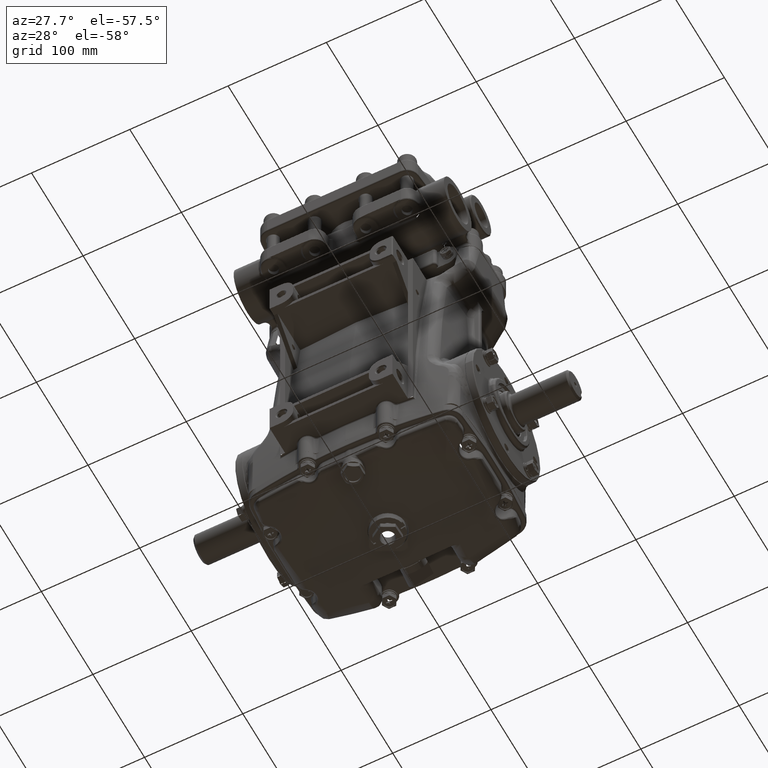
[diagram: clean part render]
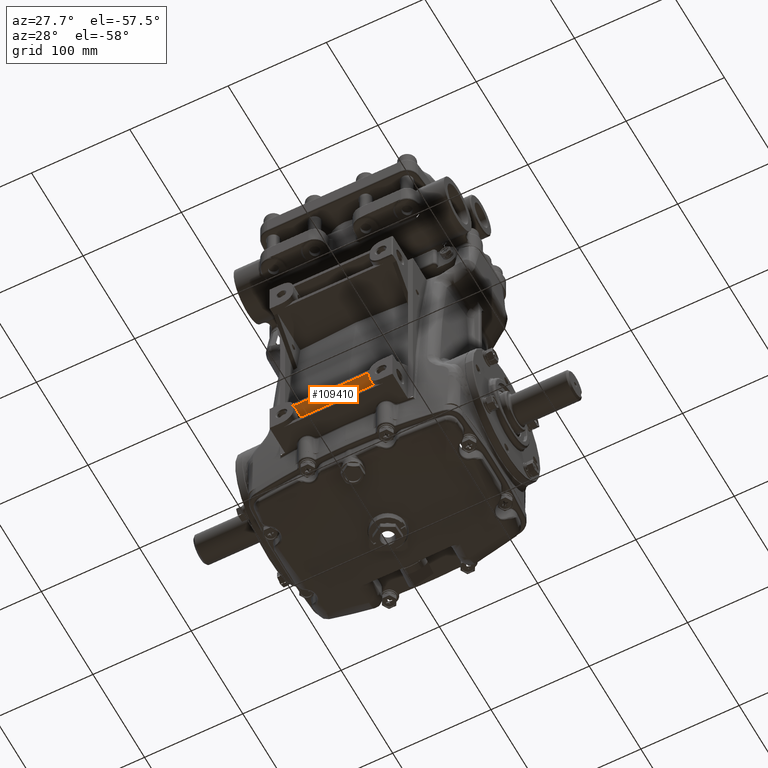
[diagram: same view with one face highlighted and labeled with its STEP entity id]
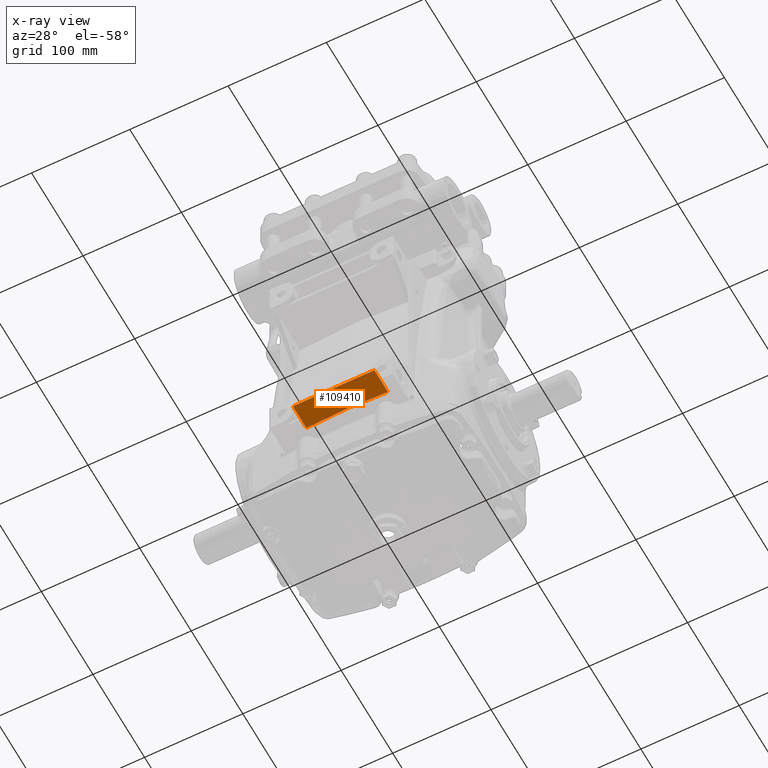
[diagram: x-ray of the same camera — body ghosted, the highlighted face saturated]
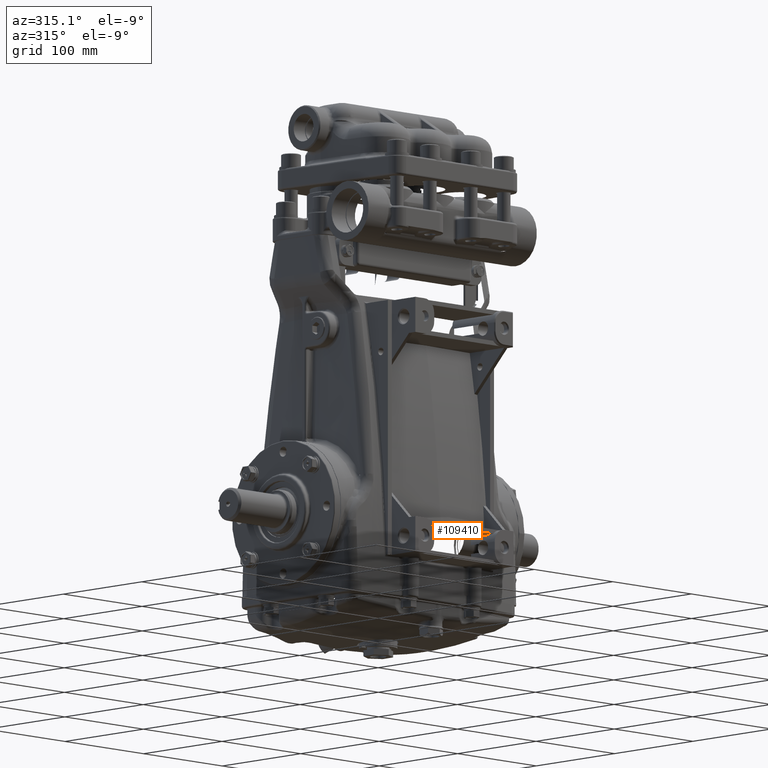
[diagram: same view with one face highlighted and labeled with its STEP entity id]
A machine part, auxiliary view. The second image highlights one B-rep face of the part: STEP entity #109410.
The next image is the same camera in x-ray: the body ghosted, the highlighted face saturated — about 0% of this face is hidden behind the body in this view.
A second angle (auxiliary view) of the same face is appended — the face is thin or edge-on in the first view.
In plain terms, the highlighted planar face has unit normal (-0, 0, -1).
Its self-contained STEP definition (entity closure, byte-faithful):
#2720 = VERTEX_POINT ( 'NONE', #69093 ) ;
#4699 = EDGE_CURVE ( 'NONE', #28708, #92630, #49087, .T. ) ;
#4927 = CARTESIAN_POINT ( 'NONE',  ( 1.636052287007907724, 19685.03937007874265, -0.5118110236220468900 ) ) ;
#5767 = CARTESIAN_POINT ( 'NONE',  ( -2.460629921259842146, -4.133858267716535195, -0.5118110236220467790 ) ) ;
#5929 = ORIENTED_EDGE ( 'NONE', *, *, #102071, .F. ) ;
#10017 = ORIENTED_EDGE ( 'NONE', *, *, #100381, .T. ) ;
#11924 = CARTESIAN_POINT ( 'NONE',  ( -1.222364486933102068, -3.121221710302681362, -0.5118110236220441145 ) ) ;
#12025 = VECTOR ( 'NONE', #37574, 39.37007874015748143 ) ;
#12298 = LINE ( 'NONE', #4927, #12025 ) ;
#12479 = CARTESIAN_POINT ( 'NONE',  ( -0.6520714626466573849, -3.144024415188038990, -0.5118110236220432263 ) ) ;
#14625 = CARTESIAN_POINT ( 'NONE',  ( 0.4023859180844202577, -3.149323699020775358, -0.5118110236220430043 ) ) ;
#15325 = DIRECTION ( 'NONE',  ( 1.000000000000000000, 0.000000000000000000, -1.665334536937734318E-16 ) ) ;
#16713 = EDGE_LOOP ( 'NONE', ( #106515, #10017, #78664, #94939, #5929 ) ) ;
#19324 = B_SPLINE_CURVE_WITH_KNOTS ( 'NONE', 3,
 ( #57357, #100099, #74753, #68009, #32589, #91637, #14625, #76981, #109107, #101214 ),
 .UNSPECIFIED., .F., .F.,
 ( 4, 1, 1, 1, 1, 1, 1, 4 ),
 ( 0.02101086143339038481, 0.02704650381271875292, 0.02872662549766413081, 0.03754793350082115400, 0.04750894290879771609, 0.05126020163480796143, 0.05697418032636211022, 0.06258520371187366316 ),
 .UNSPECIFIED. ) ;
#20904 = CARTESIAN_POINT ( 'NONE',  ( -0.06966648763912657027, -3.152536376400494333, -0.5118110236220517750 ) ) ;
#21449 = CARTESIAN_POINT ( 'NONE',  ( 8.195543980992789655E-16, -3.152536376400864260, -0.5118110236220471121 ) ) ;
#21473 = EDGE_CURVE ( 'NONE', #28796, #109370, #19324, .T. ) ;
#25636 = AXIS2_PLACEMENT_3D ( 'NONE', #35273, #86998, #42087 ) ;
#28235 = CARTESIAN_POINT ( 'NONE',  ( -0.9473730644658576727, -3.134474832942831135, -0.5118110236220484444 ) ) ;
#28708 = VERTEX_POINT ( 'NONE', #43912 ) ;
#28796 = VERTEX_POINT ( 'NONE', #31334 ) ;
#31334 = CARTESIAN_POINT ( 'NONE',  ( 1.636052287007443651, -3.095787666780915881, -0.5118110236220475562 ) ) ;
#32589 = CARTESIAN_POINT ( 'NONE',  ( 0.9473730644658576727, -3.134474832942831135, -0.5118110236220484444 ) ) ;
#34737 = LINE ( 'NONE', #95474, #37118 ) ;
#35273 = CARTESIAN_POINT ( 'NONE',  ( -2.460629921259842146, 19685.03937007874265, -0.5118110236220467790 ) ) ;
#37118 = VECTOR ( 'NONE', #60089, 39.37007874015748143 ) ;
#37574 = DIRECTION ( 'NONE',  ( -0.000000000000000000, 1.000000000000000000, 0.000000000000000000 ) ) ;
#42087 = DIRECTION ( 'NONE',  ( -1.000000000000000000, 0.000000000000000000, 1.665334536937734318E-16 ) ) ;
#43750 = PLANE ( 'NONE',  #25636 ) ;
#43912 = CARTESIAN_POINT ( 'NONE',  ( -1.636052287007907724, -4.133858267717251955, -0.5118110236220468900 ) ) ;
#49087 = LINE ( 'NONE', #5767, #110543 ) ;
#55215 = CARTESIAN_POINT ( 'NONE',  ( -1.552941157155764529, -3.101553381501868323, -0.5118110236220498876 ) ) ;
#55350 = EDGE_CURVE ( 'NONE', #2720, #109370, #74112, .T. ) ;
#57357 = CARTESIAN_POINT ( 'NONE',  ( 1.636052287007443651, -3.095787666780915881, -0.5118110236220475562 ) ) ;
#60089 = DIRECTION ( 'NONE',  ( 0.000000000000000000, 1.000000000000000000, 0.000000000000000000 ) ) ;
#68009 = CARTESIAN_POINT ( 'NONE',  ( 1.222364486933102068, -3.121221710302681362, -0.5118110236220441145 ) ) ;
#69093 = CARTESIAN_POINT ( 'NONE',  ( -1.636052287007443651, -3.095787666780915881, -0.5118110236220475562 ) ) ;
#69609 = CARTESIAN_POINT ( 'NONE',  ( 8.195543980992789655E-16, -3.152536376400864260, -0.5118110236220471121 ) ) ;
#71523 = CARTESIAN_POINT ( 'NONE',  ( -0.4023859180844202577, -3.149323699020775358, -0.5118110236220430043 ) ) ;
#72617 = CARTESIAN_POINT ( 'NONE',  ( -1.447199814141560292, -3.108324040596996074, -0.5118110236220476672 ) ) ;
#74112 = B_SPLINE_CURVE_WITH_KNOTS ( 'NONE', 3,
 ( #107488, #55215, #72617, #11924, #28235, #12479, #71523, #105268, #20904, #21449 ),
 .UNSPECIFIED., .F., .F.,
 ( 4, 1, 1, 1, 1, 1, 1, 4 ),
 ( 0.02101086143339038481, 0.02704650381271875292, 0.02872662549766413081, 0.03754793350082115400, 0.04750894290879771609, 0.05126020163480796143, 0.05697418032636211022, 0.06258520371187366316 ),
 .UNSPECIFIED. ) ;
#74753 = CARTESIAN_POINT ( 'NONE',  ( 1.447199814141560292, -3.108324040596996074, -0.5118110236220476672 ) ) ;
#76923 = FACE_OUTER_BOUND ( 'NONE', #16713, .T. ) ;
#76981 = CARTESIAN_POINT ( 'NONE',  ( 0.2111803238520492121, -3.151907843443646939, -0.5118110236220464460 ) ) ;
#78664 = ORIENTED_EDGE ( 'NONE', *, *, #55350, .T. ) ;
#86998 = DIRECTION ( 'NONE',  ( -1.665334536937734318E-16, 0.000000000000000000, -1.000000000000000000 ) ) ;
#91637 = CARTESIAN_POINT ( 'NONE',  ( 0.6520714626466573849, -3.144024415188038990, -0.5118110236220432263 ) ) ;
#92630 = VERTEX_POINT ( 'NONE', #103237 ) ;
#94939 = ORIENTED_EDGE ( 'NONE', *, *, #21473, .F. ) ;
#95474 = CARTESIAN_POINT ( 'NONE',  ( -1.636052287007907724, 19685.03937007874265, -0.5118110236220468900 ) ) ;
#100099 = CARTESIAN_POINT ( 'NONE',  ( 1.552941157155764529, -3.101553381501868323, -0.5118110236220498876 ) ) ;
#100381 = EDGE_CURVE ( 'NONE', #28708, #2720, #34737, .T. ) ;
#101214 = CARTESIAN_POINT ( 'NONE',  ( 8.195543980992789655E-16, -3.152536376400864260, -0.5118110236220471121 ) ) ;
#102071 = EDGE_CURVE ( 'NONE', #92630, #28796, #12298, .T. ) ;
#103237 = CARTESIAN_POINT ( 'NONE',  ( 1.636052287007907724, -4.133858267717251955, -0.5118110236220468900 ) ) ;
#105268 = CARTESIAN_POINT ( 'NONE',  ( -0.2111803238520492121, -3.151907843443646939, -0.5118110236220464460 ) ) ;
#106515 = ORIENTED_EDGE ( 'NONE', *, *, #4699, .F. ) ;
#107488 = CARTESIAN_POINT ( 'NONE',  ( -1.636052287007443651, -3.095787666780915881, -0.5118110236220475562 ) ) ;
#109107 = CARTESIAN_POINT ( 'NONE',  ( 0.06966648763912657027, -3.152536376400494333, -0.5118110236220517750 ) ) ;
#109370 = VERTEX_POINT ( 'NONE', #69609 ) ;
#109410 = ADVANCED_FACE ( 'NONE', ( #76923 ), #43750, .T. ) ;
#110543 = VECTOR ( 'NONE', #15325, 39.37007874015748143 ) ;